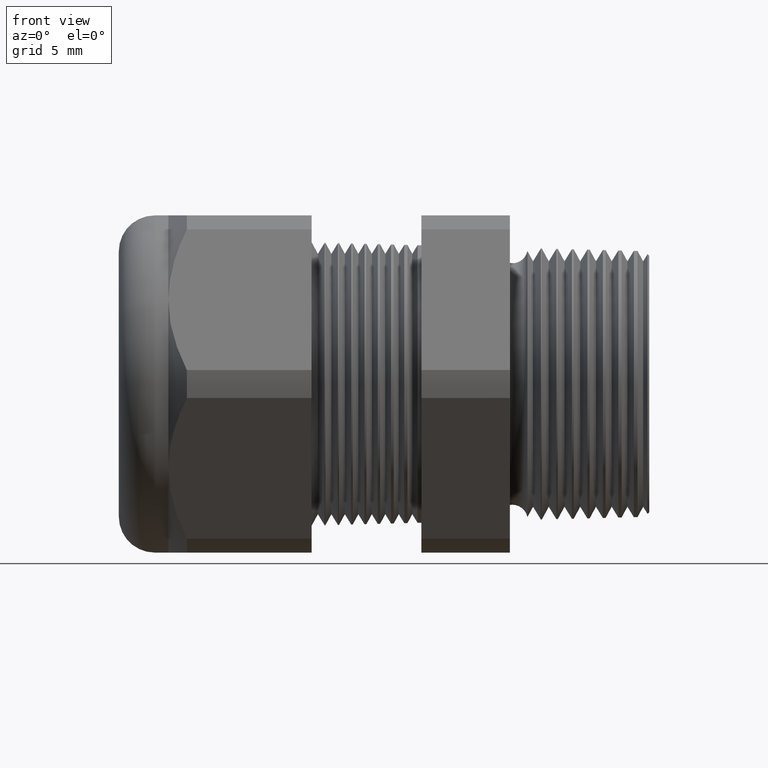
[diagram: clean part render]
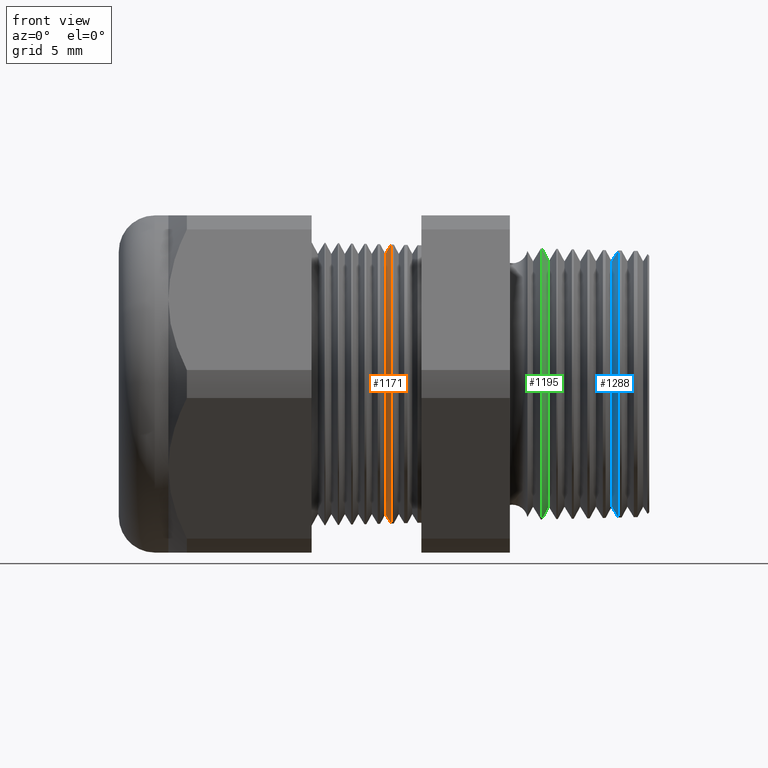
[diagram: same view with three faces highlighted in distinct colors, each labeled with its STEP entity id]
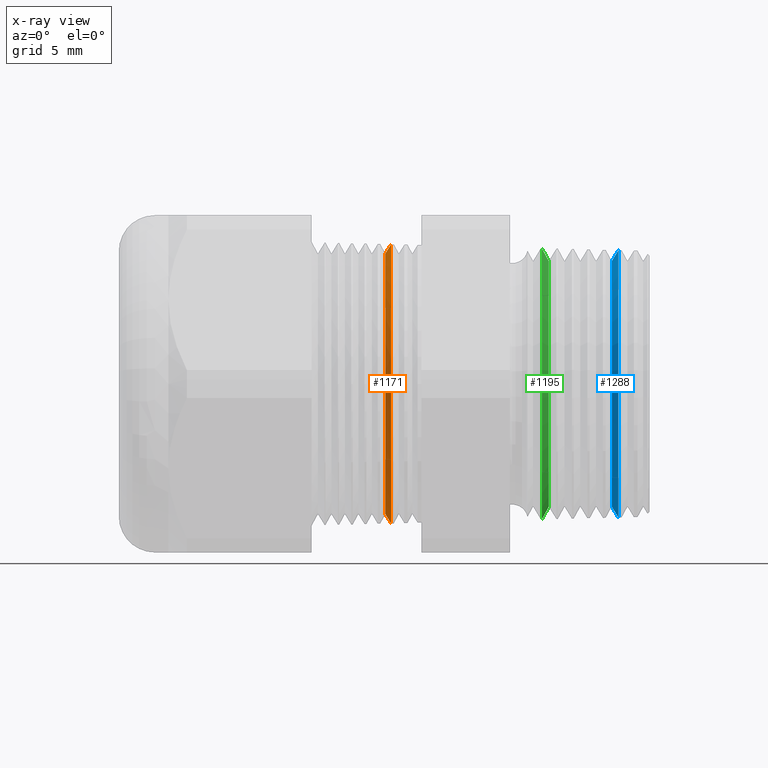
[diagram: x-ray of the same camera — body ghosted, the three highlighted faces saturated]
A machine part, front view with three faces highlighted in distinct colors.
The next image is the same camera in x-ray (body ghosted, the three faces saturated) — at least one of them is partly hidden behind the body in this view.
Their STEP definitions:

[orange] entity #1171 — the highlighted conical surface has half-angle 58.5 deg.
#319 = VERTEX_POINT ( 'NONE', #2114 ) ;
#320 = VERTEX_POINT ( 'NONE', #2113 ) ;
#322 = EDGE_CURVE ( 'NONE', #320, #323, #2112, .T. ) ;
#323 = VERTEX_POINT ( 'NONE', #2108 ) ;
#326 = VERTEX_POINT ( 'NONE', #2102 ) ;
#328 = EDGE_CURVE ( 'NONE', #319, #326, #2101, .T. ) ;
#594 = EDGE_CURVE ( 'NONE', #326, #323, #2996, .T. ) ;
#1150 = ORIENTED_EDGE ( 'NONE', *, *, #1168, .T. ) ;
#1151 = ORIENTED_EDGE ( 'NONE', *, *, #328, .T. ) ;
#1152 = ORIENTED_EDGE ( 'NONE', *, *, #594, .T. ) ;
#1168 = EDGE_CURVE ( 'NONE', #320, #319, #2967, .T. ) ;
#1171 = ADVANCED_FACE ( 'NONE', ( #2961 ), #2959, .T. ) ;
#1172 = EDGE_LOOP ( 'NONE', ( #1173, #1150, #1151, #1152 ) ) ;
#1173 = ORIENTED_EDGE ( 'NONE', *, *, #322, .F. ) ;
#2098 = DIRECTION ( 'NONE',  ( 0.5224985647159299300, 0.0000000000000000000, -0.8526401643541037200 ) ) ;
#2099 = VECTOR ( 'NONE', #2098, 39.37007874015748100 ) ;
#2100 = CARTESIAN_POINT ( 'NONE',  ( -0.5870917547981794300, 0.0000000000000000000, -0.2896307351718083200 ) ) ;
#2101 = LINE ( 'NONE', #2100, #2099 ) ;
#2102 = CARTESIAN_POINT ( 'NONE',  ( -0.5743775187239775800, 3.801040154363095500E-017, -0.3103784827600519200 ) ) ;
#2108 = CARTESIAN_POINT ( 'NONE',  ( -0.5743775187239775800, 0.0000000000000000000, 0.3103784827600519200 ) ) ;
#2109 = DIRECTION ( 'NONE',  ( 0.5224985647159299300, 1.044183048100726400E-016, 0.8526401643541037200 ) ) ;
#2110 = VECTOR ( 'NONE', #2109, 39.37007874015748100 ) ;
#2111 = CARTESIAN_POINT ( 'NONE',  ( -0.5870917547981794300, 3.546953527628497700E-017, 0.2896307351718083200 ) ) ;
#2112 = LINE ( 'NONE', #2111, #2110 ) ;
#2113 = CARTESIAN_POINT ( 'NONE',  ( -0.5870917547981794300, 0.0000000000000000000, 0.2896307351718083200 ) ) ;
#2114 = CARTESIAN_POINT ( 'NONE',  ( -0.5870917547981794300, 3.677897204110165000E-017, -0.2896307351718083200 ) ) ;
#2950 = DIRECTION ( 'NONE',  ( 0.0000000000000000000, 0.0000000000000000000, -1.000000000000000000 ) ) ;
#2951 = DIRECTION ( 'NONE',  ( 1.000000000000000000, 0.0000000000000000000, 0.0000000000000000000 ) ) ;
#2952 = CARTESIAN_POINT ( 'NONE',  ( -0.5870917547981794300, 0.0000000000000000000, 0.0000000000000000000 ) ) ;
#2953 = AXIS2_PLACEMENT_3D ( 'NONE', #2952, #2951, #2950 ) ;
#2959 = CONICAL_SURFACE ( 'NONE', #2953, 0.2896307351718083200, 1.021017612416705000 ) ;
#2961 = FACE_OUTER_BOUND ( 'NONE', #1172, .T. ) ;
#2963 = DIRECTION ( 'NONE',  ( 0.0000000000000000000, 0.0000000000000000000, -1.000000000000000000 ) ) ;
#2965 = DIRECTION ( 'NONE',  ( 1.000000000000000000, 0.0000000000000000000, 0.0000000000000000000 ) ) ;
#2966 = AXIS2_PLACEMENT_3D ( 'NONE', #2976, #2965, #2963 ) ;
#2967 = CIRCLE ( 'NONE', #2966, 0.2896307351718083200 ) ;
#2976 = CARTESIAN_POINT ( 'NONE',  ( -0.5870917547981794300, 0.0000000000000000000, 0.0000000000000000000 ) ) ;
#2990 = DIRECTION ( 'NONE',  ( 0.0000000000000000000, 0.0000000000000000000, -1.000000000000000000 ) ) ;
#2991 = DIRECTION ( 'NONE',  ( -1.000000000000000000, 0.0000000000000000000, 0.0000000000000000000 ) ) ;
#2992 = CARTESIAN_POINT ( 'NONE',  ( -0.5743775187239775800, 0.0000000000000000000, 0.0000000000000000000 ) ) ;
#2994 = AXIS2_PLACEMENT_3D ( 'NONE', #2992, #2991, #2990 ) ;
#2996 = CIRCLE ( 'NONE', #2994, 0.3103784827600519200 ) ;

[blue] entity #1288 — the highlighted conical surface has half-angle 58.5 deg.
#72 = VERTEX_POINT ( 'NONE', #1595 ) ;
#73 = VERTEX_POINT ( 'NONE', #1594 ) ;
#75 = EDGE_CURVE ( 'NONE', #73, #76, #1593, .T. ) ;
#76 = VERTEX_POINT ( 'NONE', #1589 ) ;
#79 = VERTEX_POINT ( 'NONE', #1583 ) ;
#81 = EDGE_CURVE ( 'NONE', #72, #79, #1582, .T. ) ;
#587 = EDGE_CURVE ( 'NONE', #79, #76, #2889, .T. ) ;
#1285 = EDGE_CURVE ( 'NONE', #73, #72, #3299, .T. ) ;
#1288 = ADVANCED_FACE ( 'NONE', ( #3294 ), #3293, .T. ) ;
#1289 = EDGE_LOOP ( 'NONE', ( #1290, #1291, #1292, #1293 ) ) ;
#1290 = ORIENTED_EDGE ( 'NONE', *, *, #75, .F. ) ;
#1291 = ORIENTED_EDGE ( 'NONE', *, *, #1285, .T. ) ;
#1292 = ORIENTED_EDGE ( 'NONE', *, *, #81, .T. ) ;
#1293 = ORIENTED_EDGE ( 'NONE', *, *, #587, .T. ) ;
#1581 = CARTESIAN_POINT ( 'NONE',  ( -0.08347073567907516100, 0.0000000000000000000, -0.2730123959962614800 ) ) ;
#1582 = LINE ( 'NONE', #1581, #1642 ) ;
#1583 = CARTESIAN_POINT ( 'NONE',  ( -0.06868745204508762400, 3.638872909881729400E-017, -0.2971365223356852200 ) ) ;
#1589 = CARTESIAN_POINT ( 'NONE',  ( -0.06868745204508762400, 0.0000000000000000000, 0.2971365223356852200 ) ) ;
#1590 = DIRECTION ( 'NONE',  ( 0.5224985647159332600, 1.044183048100724200E-016, 0.8526401643541019500 ) ) ;
#1591 = VECTOR ( 'NONE', #1590, 39.37007874015747400 ) ;
#1592 = CARTESIAN_POINT ( 'NONE',  ( -0.08347073567907516100, 3.343437568843712800E-017, 0.2730123959962614800 ) ) ;
#1593 = LINE ( 'NONE', #1592, #1591 ) ;
#1594 = CARTESIAN_POINT ( 'NONE',  ( -0.08347073567907516100, 0.0000000000000000000, 0.2730123959962614800 ) ) ;
#1595 = CARTESIAN_POINT ( 'NONE',  ( -0.08347073567907516100, 3.495690326949480300E-017, -0.2730123959962614800 ) ) ;
#1641 = DIRECTION ( 'NONE',  ( 0.5224985647159332600, 0.0000000000000000000, -0.8526401643541019500 ) ) ;
#1642 = VECTOR ( 'NONE', #1641, 39.37007874015747400 ) ;
#2885 = DIRECTION ( 'NONE',  ( 0.0000000000000000000, 0.0000000000000000000, -1.000000000000000000 ) ) ;
#2886 = DIRECTION ( 'NONE',  ( -1.000000000000000000, 0.0000000000000000000, 0.0000000000000000000 ) ) ;
#2887 = CARTESIAN_POINT ( 'NONE',  ( -0.06868745204508762400, 0.0000000000000000000, 0.0000000000000000000 ) ) ;
#2888 = AXIS2_PLACEMENT_3D ( 'NONE', #2887, #2886, #2885 ) ;
#2889 = CIRCLE ( 'NONE', #2888, 0.2971365223356852200 ) ;
#3283 = DIRECTION ( 'NONE',  ( 0.0000000000000000000, 0.0000000000000000000, -1.000000000000000000 ) ) ;
#3284 = DIRECTION ( 'NONE',  ( 1.000000000000000000, 0.0000000000000000000, 0.0000000000000000000 ) ) ;
#3285 = CARTESIAN_POINT ( 'NONE',  ( -0.08347073567907516100, 0.0000000000000000000, 0.0000000000000000000 ) ) ;
#3286 = AXIS2_PLACEMENT_3D ( 'NONE', #3285, #3284, #3283 ) ;
#3293 = CONICAL_SURFACE ( 'NONE', #3286, 0.2730123959962614800, 1.021017612416701200 ) ;
#3294 = FACE_OUTER_BOUND ( 'NONE', #1289, .T. ) ;
#3295 = DIRECTION ( 'NONE',  ( 0.0000000000000000000, 0.0000000000000000000, -1.000000000000000000 ) ) ;
#3296 = DIRECTION ( 'NONE',  ( 1.000000000000000000, 0.0000000000000000000, 0.0000000000000000000 ) ) ;
#3297 = AXIS2_PLACEMENT_3D ( 'NONE', #3309, #3296, #3295 ) ;
#3299 = CIRCLE ( 'NONE', #3297, 0.2730123959962614800 ) ;
#3309 = CARTESIAN_POINT ( 'NONE',  ( -0.08347073567907516100, 0.0000000000000000000, 0.0000000000000000000 ) ) ;

[green] entity #1195 — the highlighted conical surface has half-angle 61.5 deg.
#147 = VERTEX_POINT ( 'NONE', #1764 ) ;
#148 = VERTEX_POINT ( 'NONE', #1763 ) ;
#550 = EDGE_CURVE ( 'NONE', #4314, #4316, #2775, .T. ) ;
#1195 = ADVANCED_FACE ( 'NONE', ( #3026 ), #3020, .T. ) ;
#1196 = EDGE_LOOP ( 'NONE', ( #1197, #1198, #1200, #1254 ) ) ;
#1197 = ORIENTED_EDGE ( 'NONE', *, *, #4320, .F. ) ;
#1198 = ORIENTED_EDGE ( 'NONE', *, *, #1199, .F. ) ;
#1199 = EDGE_CURVE ( 'NONE', #148, #147, #3015, .T. ) ;
#1200 = ORIENTED_EDGE ( 'NONE', *, *, #4313, .T. ) ;
#1254 = ORIENTED_EDGE ( 'NONE', *, *, #550, .T. ) ;
#1763 = CARTESIAN_POINT ( 'NONE',  ( -0.2234707356790751900, 0.0000000000000000000, 0.2730123959962614800 ) ) ;
#1764 = CARTESIAN_POINT ( 'NONE',  ( -0.2234707356790751900, 3.518462044086567700E-017, -0.2730123959962614800 ) ) ;
#2769 = DIRECTION ( 'NONE',  ( 0.0000000000000000000, 0.0000000000000000000, 1.000000000000000000 ) ) ;
#2772 = DIRECTION ( 'NONE',  ( 1.000000000000000000, 0.0000000000000000000, 0.0000000000000000000 ) ) ;
#2773 = AXIS2_PLACEMENT_3D ( 'NONE', #2787, #2772, #2769 ) ;
#2775 = CIRCLE ( 'NONE', #2773, 0.3015960619748462900 ) ;
#2787 = CARTESIAN_POINT ( 'NONE',  ( -0.2389904000387095600, 0.0000000000000000000, 0.0000000000000000000 ) ) ;
#3010 = DIRECTION ( 'NONE',  ( 0.0000000000000000000, 0.0000000000000000000, 1.000000000000000000 ) ) ;
#3012 = DIRECTION ( 'NONE',  ( -1.000000000000000000, 0.0000000000000000000, 0.0000000000000000000 ) ) ;
#3013 = CARTESIAN_POINT ( 'NONE',  ( -0.2399999999999999600, 0.0000000000000000000, 0.0000000000000000000 ) ) ;
#3014 = AXIS2_PLACEMENT_3D ( 'NONE', #3013, #3012, #3010 ) ;
#3015 = CIRCLE ( 'NONE', #3129, 0.2730123959962614800 ) ;
#3020 = CONICAL_SURFACE ( 'NONE', #3014, 0.3034555137900915000, 1.073377489976501000 ) ;
#3026 = FACE_OUTER_BOUND ( 'NONE', #1196, .T. ) ;
#3125 = DIRECTION ( 'NONE',  ( 0.0000000000000000000, 0.0000000000000000000, -1.000000000000000000 ) ) ;
#3127 = DIRECTION ( 'NONE',  ( 1.000000000000000000, 0.0000000000000000000, 0.0000000000000000000 ) ) ;
#3128 = CARTESIAN_POINT ( 'NONE',  ( -0.2234707356790751900, 0.0000000000000000000, 0.0000000000000000000 ) ) ;
#3129 = AXIS2_PLACEMENT_3D ( 'NONE', #3128, #3127, #3125 ) ;
#3882 = DIRECTION ( 'NONE',  ( -0.4771587602596187900, 1.076240564057388000E-016, -0.8788171126619597200 ) ) ;
#3883 = VECTOR ( 'NONE', #3882, 39.37007874015748900 ) ;
#3885 = CARTESIAN_POINT ( 'NONE',  ( -0.2399999999999999600, 3.716258236466510600E-017, -0.3034555137900915000 ) ) ;
#3887 = LINE ( 'NONE', #3885, #3883 ) ;
#3914 = CARTESIAN_POINT ( 'NONE',  ( -0.2389904000387095600, 3.693796496815785000E-017, -0.3015960619748462900 ) ) ;
#3915 = CARTESIAN_POINT ( 'NONE',  ( -0.2389904000387095600, 0.0000000000000000000, 0.3015960619748462900 ) ) ;
#3918 = DIRECTION ( 'NONE',  ( -0.4771587602596187900, 0.0000000000000000000, 0.8788171126619597200 ) ) ;
#3919 = VECTOR ( 'NONE', #3918, 39.37007874015748900 ) ;
#3922 = CARTESIAN_POINT ( 'NONE',  ( -0.2399999999999999600, 0.0000000000000000000, 0.3034555137900915000 ) ) ;
#3924 = LINE ( 'NONE', #3922, #3919 ) ;
#4313 = EDGE_CURVE ( 'NONE', #148, #4314, #3924, .T. ) ;
#4314 = VERTEX_POINT ( 'NONE', #3915 ) ;
#4316 = VERTEX_POINT ( 'NONE', #3914 ) ;
#4320 = EDGE_CURVE ( 'NONE', #147, #4316, #3887, .T. ) ;